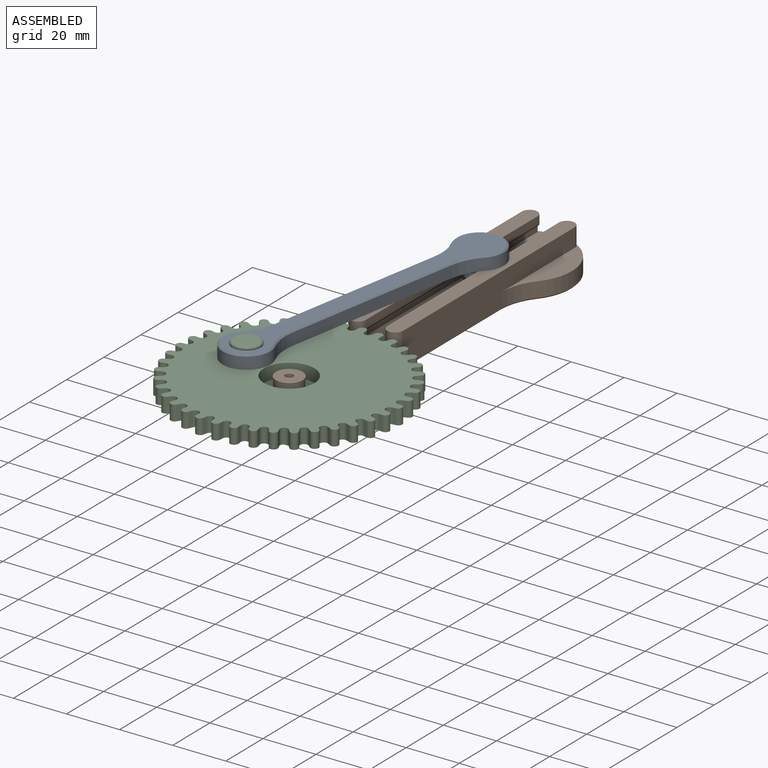
[diagram: assembled view]
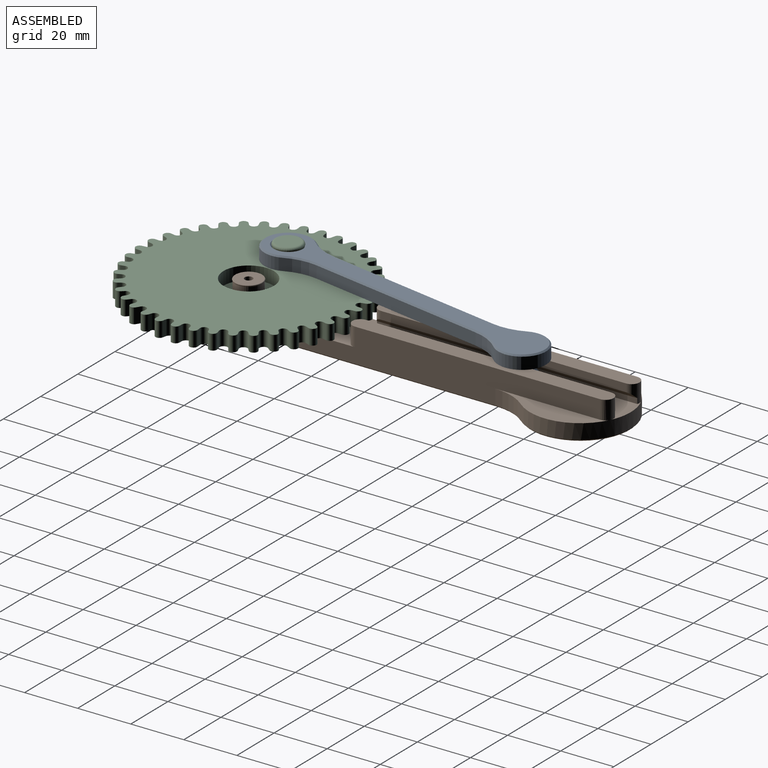
[diagram: assembled view, second angle]
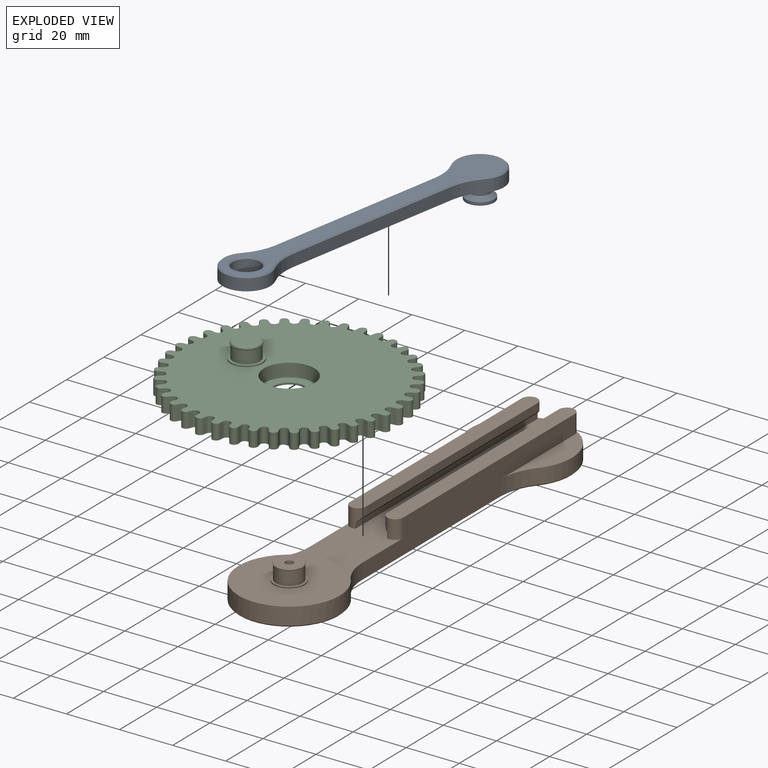
[diagram: exploded view]
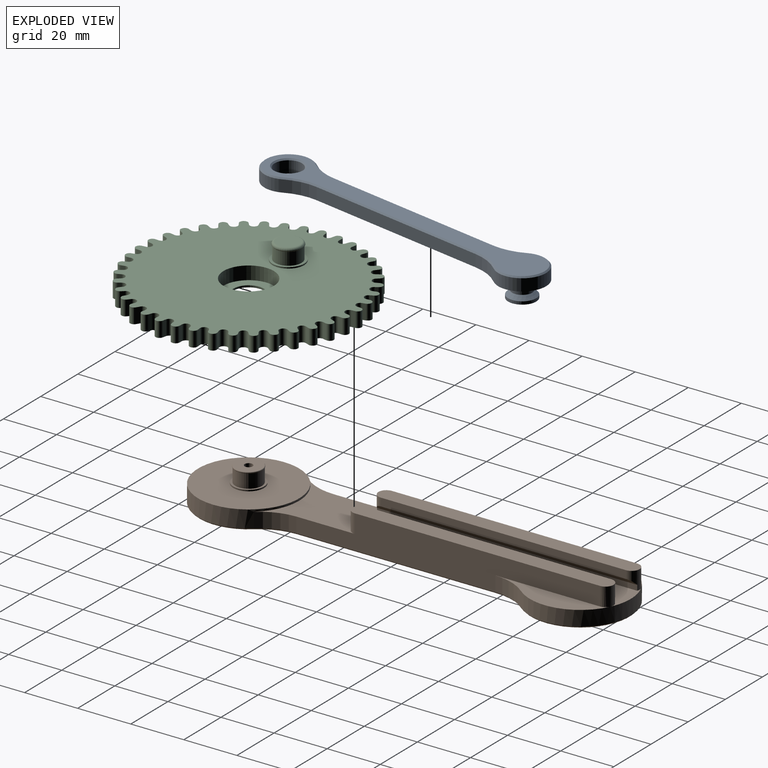
[diagram: exploded view, second angle]
ASSEMBLY  parts=3 mates=4
PART A: 26 faces, bbox 18x120x11.2 mm
  f0: plane 119x17mm, normal (0,0,1), area 979.4mm2, adj f13,f14,f15,f16,f17,f18,f19,f20
  f1: plane 69.44x4.5mm, normal (-1,0,0), area 312.5mm2, adj f3,f9,f10,f21
  f2: cylinder r=9mm len=18mm, axis (0,0,-1), area 175.5mm2, adj f3,f9,f12,f18
  f3: plane 120x18mm, normal (0,0,-1), area 1014.7mm2, adj f1,f2,f4,f5,f6,f7,f9,f10
  f4: cylinder r=5.15mm len=10.3mm, axis (0,0,-1), area 145.6mm2, adj f3,f13
  f5: cylinder r=9mm len=18mm, axis (0,0,-1), area 175.5mm2, adj f3,f10,f11,f17
  f6: plane 69.44x4.5mm, normal (1,0,0), area 312.5mm2, adj f3,f11,f12,f14
  f7: cylinder r=6mm len=12mm, axis (0,0,1), area 18.8mm2, adj f3,f8
  f8: plane 12x12mm, normal (0,0,-1), area 67.7mm2, adj f7,f22
  f9: cylinder r=20mm len=11.23mm, axis (0,0,-1), area 53.6mm2, adj f1,f2,f3,f20
  f10: cylinder r=20mm len=11.23mm, axis (0,0,-1), area 53.6mm2, adj f1,f3,f5,f19
  f11: cylinder r=20mm len=11.23mm, axis (0,0,-1), area 53.6mm2, adj f3,f5,f6,f15
  f12: cylinder r=20mm len=11.23mm, axis (0,0,-1), area 53.6mm2, adj f2,f3,f6,f16
  f13: cone r=5.15mm half-angle=45deg, axis (0,0,1), area 24mm2, adj f0,f4
  f14: plane 69.44x0.5mm, normal (0.71,0,0.71), area 49.1mm2, adj f0,f6,f15,f16
  f15: cone r=20.5mm half-angle=45deg, axis (0,0,1), area 8.5mm2, adj f0,f11,f14,f17
  f16: cone r=20.5mm half-angle=45deg, axis (0,0,1), area 8.5mm2, adj f0,f12,f14,f18
  f17: cone r=8.5mm half-angle=45deg, axis (0,0,-1), area 26.8mm2, adj f0,f5,f15,f19
  f18: cone r=8.5mm half-angle=45deg, axis (0,0,-1), area 26.8mm2, adj f0,f2,f16,f20
  f19: cone r=20.5mm half-angle=45deg, axis (0,0,1), area 8.5mm2, adj f0,f10,f17,f21
  f20: cone r=20.5mm half-angle=45deg, axis (0,0,1), area 8.5mm2, adj f0,f9,f18,f21
  f21: plane 69.44x0.5mm, normal (-0.71,0,0.71), area 49.1mm2, adj f0,f1,f19,f20
  f22: cylinder r=3.8mm len=7.6mm, axis (0,0,-1), area 73.6mm2, adj f8,f23
  f23: cone r=3.8mm half-angle=45deg, axis (0,0,-1), area 60.6mm2, adj f22,f24
  f24: cylinder r=5.3mm len=10.6mm, axis (0,0,-1), area 37.2mm2, adj f23,f25
  f25: plane 10.6x10.6mm, normal (0,0,-1), area 88.2mm2, adj f24
PART B: 45 faces, bbox 38.1x163.1x13.2 mm
  f0: plane 114.4x12.7mm, normal (-1,0,0), area 1074mm2, adj f1,f19,f21,f27,f29,f30,f32,f41
  f1: plane 131.81x29.27mm, normal (0,0,1), area 1735.6mm2, adj f0,f3,f5,f6,f15,f22,f28,f29
  f2: plane 98.05x2mm, normal (0.71,0,-0.71), area 273mm2, adj f3,f20,f30,f32
  f3: plane 98.05x2mm, normal (1,0,0), area 196.1mm2, adj f1,f2,f30,f32
  f4: plane 98.05x2mm, normal (-0.71,0,-0.71), area 273mm2, adj f5,f18,f31,f33
  f5: plane 98.05x2mm, normal (-1,0,0), area 196.1mm2, adj f1,f4,f31,f33
  f6: plane 114.4x12.7mm, normal (1,0,0), area 1074mm2, adj f1,f17,f23,f26,f28,f31,f33,f34
  f7: cylinder r=5.8mm len=11.6mm, axis (0,0,-1), area 18.2mm2, adj f8,f16
  f8: plane 11.6x11.6mm, normal (0,0,1), area 27.1mm2, adj f7,f9
  f9: cylinder r=5mm len=10mm, axis (0,0,-1), area 163.4mm2, adj f8,f10
  f10: torus R=4.87mm, axis (0,0,-1), area 19.6mm2, adj f9,f11
  f11: plane 10x10mm, normal (0,0,1), area 71.5mm2, adj f10,f44
  f12: plane 32x32mm, normal (0,0,-1), area 797.2mm2, adj f13,f44
  f13: cylinder r=16mm len=32mm, axis (0,0,-1), area 326.7mm2, adj f12,f42
  f14: plane 162.05x37.1mm, normal (0,0,-1), area 2188.6mm2, adj f34,f35,f36,f37,f38,f39,f40,f41
  f15: cylinder r=19.05mm len=38.1mm, axis (0,0,-1), area 587.8mm2, adj f1,f16,f28,f29,f38
  f16: plane 38.1x38.1mm, normal (0,0,1), area 1034.4mm2, adj f7,f15
  f17: plane 98.39x6mm, normal (0,0,1), area 582.6mm2, adj f6,f18,f31,f33
  f18: plane 92.39x3mm, normal (-1,0,0), area 277.2mm2, adj f4,f17,f31,f33
  f19: plane 98.39x6mm, normal (0,0,1), area 582.6mm2, adj f0,f20,f30,f32
  f20: plane 92.39x3mm, normal (1,0,0), area 277.2mm2, adj f2,f19,f30,f32
  f21: plane 42.14x10.74mm, normal (0,0,1), area 216.3mm2, adj f0,f22,f27,f30
  f22: cylinder r=19.05mm len=38.1mm, axis (0,0,-1), area 492mm2, adj f1,f21,f23,f26,f27,f37
  f23: plane 42.14x10.74mm, normal (0,0,1), area 216.3mm2, adj f6,f22,f26,f31
  f24: plane 32x32mm, normal (0,0,-1), area 804.2mm2, adj f25
  f25: cylinder r=16mm len=32mm, axis (0,0,-1), area 326.7mm2, adj f24,f43
  f26: cylinder r=20mm len=12.8mm, axis (0,0,-1), area 79.2mm2, adj f6,f22,f23,f35
  f27: cylinder r=20mm len=12.8mm, axis (0,0,-1), area 79.2mm2, adj f0,f21,f22,f39
  f28: cylinder r=20mm len=12.8mm, axis (0,0,-1), area 79.2mm2, adj f1,f6,f15,f36
  f29: cylinder r=20mm len=12.8mm, axis (0,0,-1), area 79.2mm2, adj f0,f1,f15,f40
  f30: cylinder r=3mm len=7mm, axis (0,0,-1), area 53.8mm2, adj f0,f1,f2,f3,f19,f20,f21
  f31: cylinder r=3mm len=7mm, axis (0,0,-1), area 53.8mm2, adj f1,f4,f5,f6,f17,f18,f23
  f32: cylinder r=3mm len=7mm, axis (0,0,1), area 53.8mm2, adj f0,f1,f2,f3,f19,f20
  f33: cylinder r=3mm len=7mm, axis (0,0,-1), area 53.8mm2, adj f1,f4,f5,f6,f17,f18
  f34: plane 74.95x0.5mm, normal (0.71,0,-0.71), area 53mm2, adj f6,f14,f35,f36
  f35: cone r=20.5mm half-angle=45deg, axis (0,0,-1), area 9.9mm2, adj f14,f26,f34,f37
  f36: cone r=20.5mm half-angle=45deg, axis (0,0,-1), area 9.9mm2, adj f14,f28,f34,f38
  f37: cone r=18.55mm half-angle=45deg, axis (0,0,1), area 60.2mm2, adj f14,f22,f35,f39
  f38: cone r=18.55mm half-angle=45deg, axis (0,0,1), area 60.2mm2, adj f14,f15,f36,f40
  f39: cone r=20.5mm half-angle=45deg, axis (0,0,-1), area 9.9mm2, adj f14,f27,f37,f41
  f40: cone r=20.5mm half-angle=45deg, axis (0,0,-1), area 9.9mm2, adj f14,f29,f38,f41
  f41: plane 74.95x0.5mm, normal (-0.71,0,-0.71), area 53mm2, adj f0,f14,f39,f40
  f42: cone r=16mm half-angle=45deg, axis (0,0,-1), area 72.2mm2, adj f13,f14
  f43: cone r=16mm half-angle=45deg, axis (0,0,-1), area 72.2mm2, adj f14,f25
  f44: cylinder r=1.5mm len=9.45mm, axis (0,0,1), area 89.1mm2, adj f11,f12
PART C: 172 faces, bbox 84x84x12.2 mm
  f0: cylinder r=1.5mm len=5.7mm, axis (0,0,-1), area 24.2mm2, adj f1,f159,f160,f161
  f1: plane 5.7x1.33mm, normal (0.23,-0.97,0), area 7.8mm2, adj f0,f2,f160,f161
  f2: cylinder r=1.5mm len=5.7mm, axis (0,0,-1), area 25.5mm2, adj f1,f3,f160,f161
  f3: plane 5.7x1.36mm, normal (-0.08,1,0), area 7.8mm2, adj f2,f4,f160,f161
  f4: cylinder r=1.5mm len=5.7mm, axis (0,0,-1), area 24.2mm2, adj f3,f5,f160,f161
  f5: plane 5.7x1.26mm, normal (0.38,-0.92,0), area 7.8mm2, adj f4,f6,f160,f161
  f6: cylinder r=1.5mm len=5.7mm, axis (0,0,-1), area 25.5mm2, adj f5,f7,f160,f161
  f7: plane 5.7x1.33mm, normal (-0.23,0.97,0), area 7.8mm2, adj f6,f8,f160,f161
  f8: cylinder r=1.5mm len=5.7mm, axis (0,0,-1), area 24.2mm2, adj f7,f9,f160,f161
  f9: plane 5.7x1.16mm, normal (0.52,-0.85,0), area 7.8mm2, adj f8,f10,f160,f161
  f10: cylinder r=1.5mm len=5.7mm, axis (0,0,-1), area 25.5mm2, adj f9,f11,f160,f161
  f11: plane 5.7x1.26mm, normal (-0.38,0.92,0), area 7.8mm2, adj f10,f12,f160,f161
  f12: cylinder r=1.5mm len=5.7mm, axis (0,0,-1), area 24.2mm2, adj f11,f13,f160,f161
  f13: plane 5.7x1.04mm, normal (0.65,-0.76,0), area 7.8mm2, adj f12,f14,f160,f161
  f14: cylinder r=1.5mm len=5.7mm, axis (0,0,-1), area 25.5mm2, adj f13,f15,f160,f161
  f15: plane 5.7x1.16mm, normal (-0.52,0.85,0), area 7.8mm2, adj f14,f16,f160,f161
  f16: cylinder r=1.5mm len=5.7mm, axis (0,0,-1), area 24.2mm2, adj f15,f17,f160,f161
  f17: plane 5.7x1.04mm, normal (0.76,-0.65,0), area 7.8mm2, adj f16,f18,f160,f161
  f18: cylinder r=1.5mm len=5.7mm, axis (0,0,-1), area 25.5mm2, adj f17,f19,f160,f161
  f19: plane 5.7x1.04mm, normal (-0.65,0.76,0), area 7.8mm2, adj f18,f20,f160,f161
  f20: cylinder r=1.5mm len=5.7mm, axis (0,0,-1), area 24.2mm2, adj f19,f21,f160,f161
  f21: plane 5.7x1.16mm, normal (0.85,-0.52,0), area 7.8mm2, adj f20,f22,f160,f161
  f22: cylinder r=1.5mm len=5.7mm, axis (0,0,-1), area 25.5mm2, adj f21,f23,f160,f161
  f23: plane 5.7x1.04mm, normal (-0.76,0.65,0), area 7.8mm2, adj f22,f24,f160,f161
  f24: cylinder r=1.5mm len=5.7mm, axis (0,0,-1), area 24.2mm2, adj f23,f25,f160,f161
  f25: plane 5.7x1.26mm, normal (0.92,-0.38,0), area 7.8mm2, adj f24,f26,f160,f161
  f26: cylinder r=1.5mm len=5.7mm, axis (0,0,-1), area 25.5mm2, adj f25,f27,f160,f161
  f27: plane 5.7x1.16mm, normal (-0.85,0.52,0), area 7.8mm2, adj f26,f28,f160,f161
  f28: cylinder r=1.5mm len=5.7mm, axis (0,0,-1), area 24.2mm2, adj f27,f29,f160,f161
  f29: plane 5.7x1.33mm, normal (0.97,-0.23,0), area 7.8mm2, adj f28,f30,f160,f161
  f30: cylinder r=1.5mm len=5.7mm, axis (0,0,-1), area 25.5mm2, adj f29,f31,f160,f161
  f31: plane 5.7x1.26mm, normal (-0.92,0.38,0), area 7.8mm2, adj f30,f32,f160,f161
  f32: cylinder r=1.5mm len=5.7mm, axis (0,0,-1), area 24.2mm2, adj f31,f33,f160,f161
  f33: plane 5.7x1.36mm, normal (1,-0.08,0), area 7.8mm2, adj f32,f34,f160,f161
  f34: cylinder r=1.5mm len=5.7mm, axis (0,0,-1), area 25.5mm2, adj f33,f35,f160,f161
  f35: plane 5.7x1.33mm, normal (-0.97,0.23,0), area 7.8mm2, adj f34,f36,f160,f161
  f36: cylinder r=1.5mm len=5.7mm, axis (0,0,-1), area 24.2mm2, adj f35,f37,f160,f161
  f37: plane 5.7x1.36mm, normal (1,0.08,0), area 7.8mm2, adj f36,f38,f160,f161
  f38: cylinder r=1.5mm len=5.7mm, axis (0,0,-1), area 25.5mm2, adj f37,f39,f160,f161
  f39: plane 5.7x1.36mm, normal (-1,0.08,0), area 7.8mm2, adj f38,f40,f160,f161
  f40: cylinder r=1.5mm len=5.7mm, axis (0,0,-1), area 24.2mm2, adj f39,f41,f160,f161
  f41: plane 5.7x1.33mm, normal (0.97,0.23,0), area 7.8mm2, adj f40,f42,f160,f161
  f42: cylinder r=1.5mm len=5.7mm, axis (0,0,-1), area 25.5mm2, adj f41,f43,f160,f161
  f43: plane 5.7x1.36mm, normal (-1,-0.08,0), area 7.8mm2, adj f42,f44,f160,f161
  f44: cylinder r=1.5mm len=5.7mm, axis (0,0,-1), area 24.2mm2, adj f43,f45,f160,f161
  f45: plane 5.7x1.26mm, normal (0.92,0.38,0), area 7.8mm2, adj f44,f46,f160,f161
  f46: cylinder r=1.5mm len=5.7mm, axis (0,0,-1), area 25.5mm2, adj f45,f47,f160,f161
  f47: plane 5.7x1.33mm, normal (-0.97,-0.23,0), area 7.8mm2, adj f46,f48,f160,f161
  f48: cylinder r=1.5mm len=5.7mm, axis (0,0,-1), area 24.2mm2, adj f47,f49,f160,f161
  f49: plane 5.7x1.16mm, normal (0.85,0.52,0), area 7.8mm2, adj f48,f50,f160,f161
  f50: cylinder r=1.5mm len=5.7mm, axis (0,0,-1), area 25.5mm2, adj f49,f51,f160,f161
  f51: plane 5.7x1.26mm, normal (-0.92,-0.38,0), area 7.8mm2, adj f50,f52,f160,f161
  f52: cylinder r=1.5mm len=5.7mm, axis (0,0,-1), area 24.2mm2, adj f51,f53,f160,f161
  f53: plane 5.7x1.04mm, normal (0.76,0.65,0), area 7.8mm2, adj f52,f54,f160,f161
  f54: cylinder r=1.5mm len=5.7mm, axis (0,0,-1), area 25.5mm2, adj f53,f55,f160,f161
  f55: plane 5.7x1.16mm, normal (-0.85,-0.52,0), area 7.8mm2, adj f54,f56,f160,f161
  f56: cylinder r=1.5mm len=5.7mm, axis (0,0,-1), area 24.2mm2, adj f55,f57,f160,f161
  f57: plane 5.7x1.04mm, normal (0.65,0.76,0), area 7.8mm2, adj f56,f58,f160,f161
  f58: cylinder r=1.5mm len=5.7mm, axis (0,0,-1), area 25.5mm2, adj f57,f59,f160,f161
  f59: plane 5.7x1.04mm, normal (-0.76,-0.65,0), area 7.8mm2, adj f58,f60,f160,f161
  f60: cylinder r=1.5mm len=5.7mm, axis (0,0,-1), area 24.2mm2, adj f59,f61,f160,f161
  f61: plane 5.7x1.16mm, normal (0.52,0.85,0), area 7.8mm2, adj f60,f62,f160,f161
  f62: cylinder r=1.5mm len=5.7mm, axis (0,0,-1), area 25.5mm2, adj f61,f63,f160,f161
  f63: plane 5.7x1.04mm, normal (-0.65,-0.76,0), area 7.8mm2, adj f62,f64,f160,f161
  f64: cylinder r=1.5mm len=5.7mm, axis (0,0,-1), area 24.2mm2, adj f63,f65,f160,f161
  f65: plane 5.7x1.26mm, normal (0.38,0.92,0), area 7.8mm2, adj f64,f66,f160,f161
  f66: cylinder r=1.5mm len=5.7mm, axis (0,0,-1), area 25.5mm2, adj f65,f67,f160,f161
  f67: plane 5.7x1.16mm, normal (-0.52,-0.85,0), area 7.8mm2, adj f66,f68,f160,f161
  f68: cylinder r=1.5mm len=5.7mm, axis (0,0,-1), area 24.2mm2, adj f67,f69,f160,f161
  f69: plane 5.7x1.33mm, normal (0.23,0.97,0), area 7.8mm2, adj f68,f70,f160,f161
  f70: cylinder r=1.5mm len=5.7mm, axis (0,0,-1), area 25.5mm2, adj f69,f71,f160,f161
  f71: plane 5.7x1.26mm, normal (-0.38,-0.92,0), area 7.8mm2, adj f70,f72,f160,f161
  f72: cylinder r=1.5mm len=5.7mm, axis (0,0,-1), area 24.2mm2, adj f71,f73,f160,f161
  f73: plane 5.7x1.36mm, normal (0.08,1,0), area 7.8mm2, adj f72,f74,f160,f161
  f74: cylinder r=1.5mm len=5.7mm, axis (0,0,-1), area 25.5mm2, adj f73,f75,f160,f161
  f75: plane 5.7x1.33mm, normal (-0.23,-0.97,0), area 7.8mm2, adj f74,f76,f160,f161
  f76: cylinder r=1.5mm len=5.7mm, axis (0,0,-1), area 24.2mm2, adj f75,f77,f160,f161
  f77: plane 5.7x1.36mm, normal (-0.08,1,0), area 7.8mm2, adj f76,f78,f160,f161
  f78: cylinder r=1.5mm len=5.7mm, axis (0,0,-1), area 25.5mm2, adj f77,f79,f160,f161
  f79: plane 5.7x1.36mm, normal (-0.08,-1,0), area 7.8mm2, adj f78,f80,f160,f161
  f80: cylinder r=1.5mm len=5.7mm, axis (0,0,-1), area 24.2mm2, adj f79,f81,f160,f161
  f81: plane 5.7x1.33mm, normal (-0.23,0.97,0), area 7.8mm2, adj f80,f82,f160,f161
  f82: cylinder r=1.5mm len=5.7mm, axis (0,0,-1), area 25.5mm2, adj f81,f83,f160,f161
  f83: plane 5.7x1.36mm, normal (0.08,-1,0), area 7.8mm2, adj f82,f84,f160,f161
  f84: cylinder r=1.5mm len=5.7mm, axis (0,0,-1), area 24.2mm2, adj f83,f85,f160,f161
  f85: plane 5.7x1.26mm, normal (-0.38,0.92,0), area 7.8mm2, adj f84,f86,f160,f161
  f86: cylinder r=1.5mm len=5.7mm, axis (0,0,-1), area 25.5mm2, adj f85,f87,f160,f161
  f87: plane 5.7x1.33mm, normal (0.23,-0.97,0), area 7.8mm2, adj f86,f88,f160,f161
  f88: cylinder r=1.5mm len=5.7mm, axis (0,0,-1), area 24.2mm2, adj f87,f89,f160,f161
  f89: plane 5.7x1.16mm, normal (-0.52,0.85,0), area 7.8mm2, adj f88,f90,f160,f161
  f90: cylinder r=1.5mm len=5.7mm, axis (0,0,-1), area 25.5mm2, adj f89,f91,f160,f161
  f91: plane 5.7x1.26mm, normal (0.38,-0.92,0), area 7.8mm2, adj f90,f92,f160,f161
  f92: cylinder r=1.5mm len=5.7mm, axis (0,0,-1), area 24.2mm2, adj f91,f93,f160,f161
  f93: plane 5.7x1.04mm, normal (-0.65,0.76,0), area 7.8mm2, adj f92,f94,f160,f161
  f94: cylinder r=1.5mm len=5.7mm, axis (0,0,-1), area 25.5mm2, adj f93,f95,f160,f161
  f95: plane 5.7x1.16mm, normal (0.52,-0.85,0), area 7.8mm2, adj f94,f96,f160,f161
  f96: cylinder r=1.5mm len=5.7mm, axis (0,0,-1), area 24.2mm2, adj f95,f97,f160,f161
  f97: plane 5.7x1.04mm, normal (-0.76,0.65,0), area 7.8mm2, adj f96,f98,f160,f161
  f98: cylinder r=1.5mm len=5.7mm, axis (0,0,-1), area 25.5mm2, adj f97,f99,f160,f161
  f99: plane 5.7x1.04mm, normal (0.65,-0.76,0), area 7.8mm2, adj f98,f100,f160,f161
  f100: cylinder r=1.5mm len=5.7mm, axis (0,0,-1), area 24.2mm2, adj f99,f101,f160,f161
  f101: plane 5.7x1.16mm, normal (-0.85,0.52,0), area 7.8mm2, adj f100,f102,f160,f161
  f102: cylinder r=1.5mm len=5.7mm, axis (0,0,-1), area 25.5mm2, adj f101,f103,f160,f161
  f103: plane 5.7x1.04mm, normal (0.76,-0.65,0), area 7.8mm2, adj f102,f104,f160,f161
  f104: cylinder r=1.5mm len=5.7mm, axis (0,0,-1), area 24.2mm2, adj f103,f105,f160,f161
  f105: plane 5.7x1.26mm, normal (-0.92,0.38,0), area 7.8mm2, adj f104,f106,f160,f161
  f106: cylinder r=1.5mm len=5.7mm, axis (0,0,-1), area 25.5mm2, adj f105,f107,f160,f161
  f107: plane 5.7x1.16mm, normal (0.85,-0.52,0), area 7.8mm2, adj f106,f108,f160,f161
  f108: cylinder r=1.5mm len=5.7mm, axis (0,0,-1), area 24.2mm2, adj f107,f109,f160,f161
  f109: plane 5.7x1.33mm, normal (-0.97,0.23,0), area 7.8mm2, adj f108,f110,f160,f161
  f110: cylinder r=1.5mm len=5.7mm, axis (0,0,-1), area 25.5mm2, adj f109,f111,f160,f161
  f111: plane 5.7x1.26mm, normal (0.92,-0.38,0), area 7.8mm2, adj f110,f112,f160,f161
  f112: cylinder r=1.5mm len=5.7mm, axis (0,0,-1), area 24.2mm2, adj f111,f113,f160,f161
  f113: plane 5.7x1.36mm, normal (-1,0.08,0), area 7.8mm2, adj f112,f114,f160,f161
  f114: cylinder r=1.5mm len=5.7mm, axis (0,0,-1), area 25.5mm2, adj f113,f115,f160,f161
  f115: plane 5.7x1.33mm, normal (0.97,-0.23,0), area 7.8mm2, adj f114,f116,f160,f161
  f116: cylinder r=1.5mm len=5.7mm, axis (0,0,-1), area 24.2mm2, adj f115,f117,f160,f161
  f117: plane 5.7x1.36mm, normal (-1,-0.08,0), area 7.8mm2, adj f116,f118,f160,f161
  f118: cylinder r=1.5mm len=5.7mm, axis (0,0,-1), area 25.5mm2, adj f117,f119,f160,f161
  f119: plane 5.7x1.36mm, normal (1,-0.08,0), area 7.8mm2, adj f118,f120,f160,f161
  f120: cylinder r=1.5mm len=5.7mm, axis (0,0,-1), area 24.2mm2, adj f119,f121,f160,f161
  f121: plane 5.7x1.33mm, normal (-0.97,-0.23,0), area 7.8mm2, adj f120,f122,f160,f161
  f122: cylinder r=1.5mm len=5.7mm, axis (0,0,-1), area 25.5mm2, adj f121,f123,f160,f161
  f123: plane 5.7x1.36mm, normal (1,0.08,0), area 7.8mm2, adj f122,f124,f160,f161
  f124: cylinder r=1.5mm len=5.7mm, axis (0,0,-1), area 24.2mm2, adj f123,f125,f160,f161
  f125: plane 5.7x1.26mm, normal (-0.92,-0.38,0), area 7.8mm2, adj f124,f126,f160,f161
  f126: cylinder r=1.5mm len=5.7mm, axis (0,0,-1), area 25.5mm2, adj f125,f127,f160,f161
  f127: plane 5.7x1.33mm, normal (0.97,0.23,0), area 7.8mm2, adj f126,f128,f160,f161
  f128: cylinder r=1.5mm len=5.7mm, axis (0,0,-1), area 24.2mm2, adj f127,f129,f160,f161
  f129: plane 5.7x1.16mm, normal (-0.85,-0.52,0), area 7.8mm2, adj f128,f130,f160,f161
  f130: cylinder r=1.5mm len=5.7mm, axis (0,0,-1), area 25.5mm2, adj f129,f131,f160,f161
  f131: plane 5.7x1.26mm, normal (0.92,0.38,0), area 7.8mm2, adj f130,f132,f160,f161
  f132: cylinder r=1.5mm len=5.7mm, axis (0,0,-1), area 24.2mm2, adj f131,f133,f160,f161
  f133: plane 5.7x1.04mm, normal (-0.76,-0.65,0), area 7.8mm2, adj f132,f134,f160,f161
  f134: cylinder r=1.5mm len=5.7mm, axis (0,0,-1), area 25.5mm2, adj f133,f135,f160,f161
  f135: plane 5.7x1.16mm, normal (0.85,0.52,0), area 7.8mm2, adj f134,f136,f160,f161
  f136: cylinder r=1.5mm len=5.7mm, axis (0,0,-1), area 24.2mm2, adj f135,f137,f160,f161
  f137: plane 5.7x1.04mm, normal (-0.65,-0.76,0), area 7.8mm2, adj f136,f138,f160,f161
  f138: cylinder r=1.5mm len=5.7mm, axis (0,0,-1), area 25.5mm2, adj f137,f139,f160,f161
  f139: plane 5.7x1.04mm, normal (0.76,0.65,0), area 7.8mm2, adj f138,f140,f160,f161
  f140: cylinder r=1.5mm len=5.7mm, axis (0,0,-1), area 24.2mm2, adj f139,f141,f160,f161
  f141: plane 5.7x1.16mm, normal (-0.52,-0.85,0), area 7.8mm2, adj f140,f142,f160,f161
  f142: cylinder r=1.5mm len=5.7mm, axis (0,0,-1), area 25.5mm2, adj f141,f143,f160,f161
  f143: plane 5.7x1.04mm, normal (0.65,0.76,0), area 7.8mm2, adj f142,f144,f160,f161
  f144: cylinder r=1.5mm len=5.7mm, axis (0,0,-1), area 24.2mm2, adj f143,f145,f160,f161
  f145: plane 5.7x1.26mm, normal (-0.38,-0.92,0), area 7.8mm2, adj f144,f146,f160,f161
  f146: cylinder r=1.5mm len=5.7mm, axis (0,0,-1), area 25.5mm2, adj f145,f147,f160,f161
  f147: plane 5.7x1.16mm, normal (0.52,0.85,0), area 7.8mm2, adj f146,f148,f160,f161
  f148: cylinder r=1.5mm len=5.7mm, axis (0,0,-1), area 24.2mm2, adj f147,f149,f160,f161
  f149: plane 5.7x1.33mm, normal (-0.23,-0.97,0), area 7.8mm2, adj f148,f150,f160,f161
  f150: cylinder r=1.5mm len=5.7mm, axis (0,0,-1), area 25.5mm2, adj f149,f151,f160,f161
  f151: plane 5.7x1.26mm, normal (0.38,0.92,0), area 7.8mm2, adj f150,f152,f160,f161
  f152: cylinder r=1.5mm len=5.7mm, axis (0,0,-1), area 24.2mm2, adj f151,f153,f160,f161
  f153: plane 5.7x1.36mm, normal (-0.08,-1,0), area 7.8mm2, adj f152,f154,f160,f161
  f154: cylinder r=1.5mm len=5.7mm, axis (0,0,-1), area 25.5mm2, adj f153,f155,f160,f161
  f155: plane 5.7x1.33mm, normal (0.23,0.97,0), area 7.8mm2, adj f154,f156,f160,f161
  f156: cylinder r=1.5mm len=5.7mm, axis (0,0,-1), area 24.2mm2, adj f155,f157,f160,f161
  f157: plane 5.7x1.36mm, normal (0.08,-1,0), area 7.8mm2, adj f156,f158,f160,f161
  f158: cylinder r=1.5mm len=5.7mm, axis (0,0,-1), area 25.5mm2, adj f157,f159,f160,f161
  f159: plane 5.7x1.36mm, normal (0.08,1,0), area 7.8mm2, adj f0,f158,f160,f161
  f160: plane 84x84mm, normal (0,0,1), area 4631mm2, adj f0,f1,f2,f3,f4,f5,f6,f7
  f161: plane 84x84mm, normal (0,0,-1), area 4923.8mm2, adj f0,f1,f2,f3,f4,f5,f6,f7
  f162: cylinder r=9.5mm len=19mm, axis (0,0,1), area 298.5mm2, adj f160,f163
  f163: plane 19x19mm, normal (0,0,1), area 179.7mm2, adj f162,f164
  f164: cylinder r=5.75mm len=11.5mm, axis (0,0,1), area 25.3mm2, adj f161,f163
  f165: cylinder r=6mm len=12mm, axis (0,0,-1), area 18.8mm2, adj f160,f166
  f166: plane 12x12mm, normal (0,0,1), area 34.6mm2, adj f165,f167
  f167: cylinder r=5mm len=10mm, axis (0,0,-1), area 149.2mm2, adj f166,f168
  f168: cone r=5.25mm half-angle=45deg, axis (0,0,1), area 11.4mm2, adj f167,f169
  f169: cylinder r=5.25mm len=10.5mm, axis (0,0,-1), area 3.3mm2, adj f168,f171
  f170: plane 8.7x8.7mm, normal (0,0,1), area 59.4mm2, adj f171
  f171: torus R=4.35mm, axis (0,0,1), area 43.7mm2, adj f169,f170
PLACE A rot(axis=(0,0,-1),10deg) t=(-28.05,-13.83,-5.7)mm
PLACE B t=(-7.1,1.44,-5.7)mm fixed
PLACE C rot(axis=(0,0,1),82.2deg) t=(-7.1,1.44,-5.7)mm
MATE cylindrical B.f7 <-> C.f162  axis (0,0,-1) through (-7.1,1.44,-3.1)mm
MATE planar A.f3 <-> C.f165  axis (0,0,-1) through (-16.38,52.66,0.5)mm
MATE cylindrical A.f4 <-> C.f165  axis (0,0,-1) through (-24.93,3.9,2.75)mm
MATE planar C.f162 <-> B.f7  axis (0,0,-1) through (-7.1,1.44,-5.7)mm
